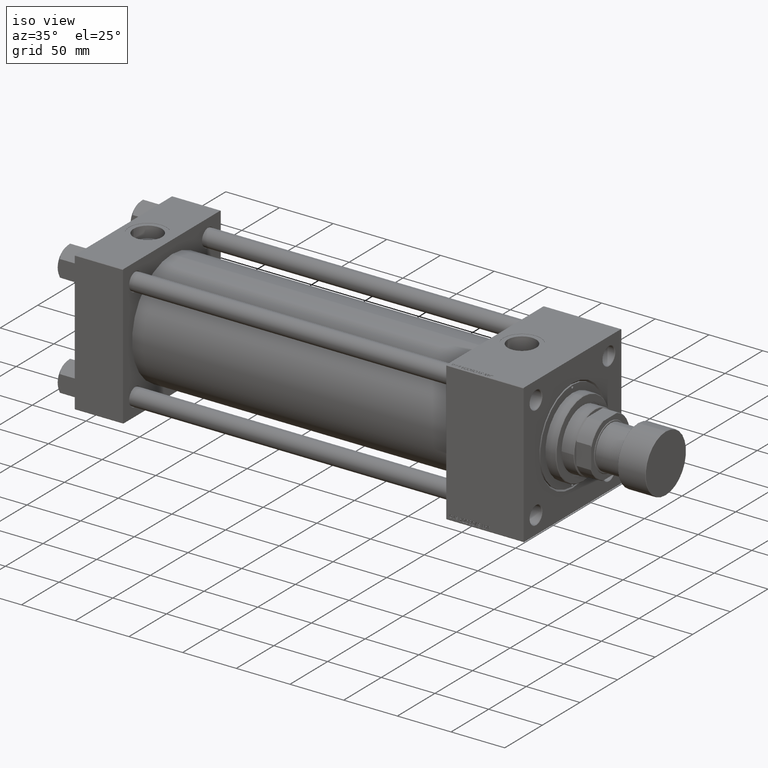
[diagram: clean part render]
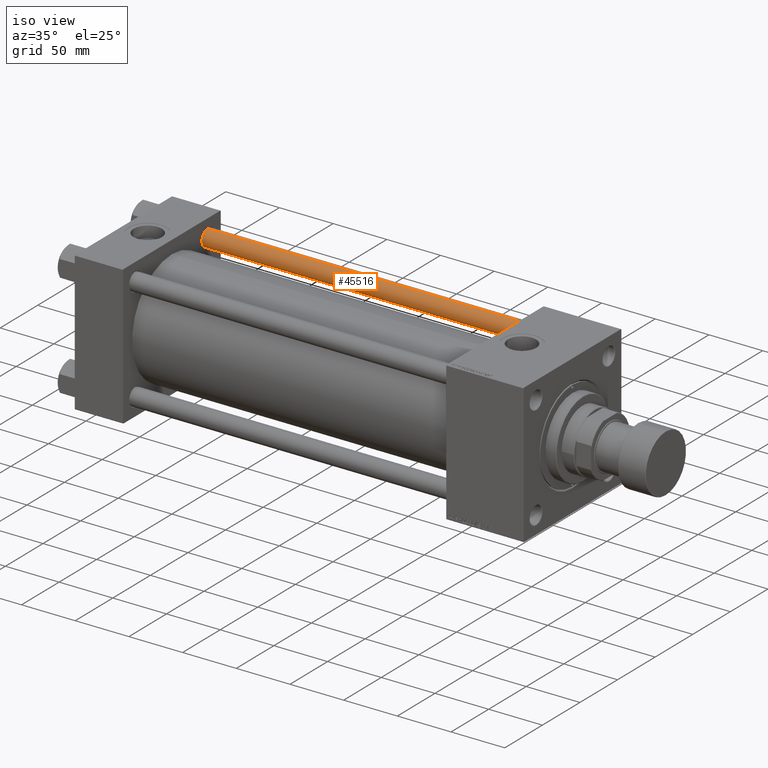
[diagram: same view with one face highlighted and labeled with its STEP entity id]
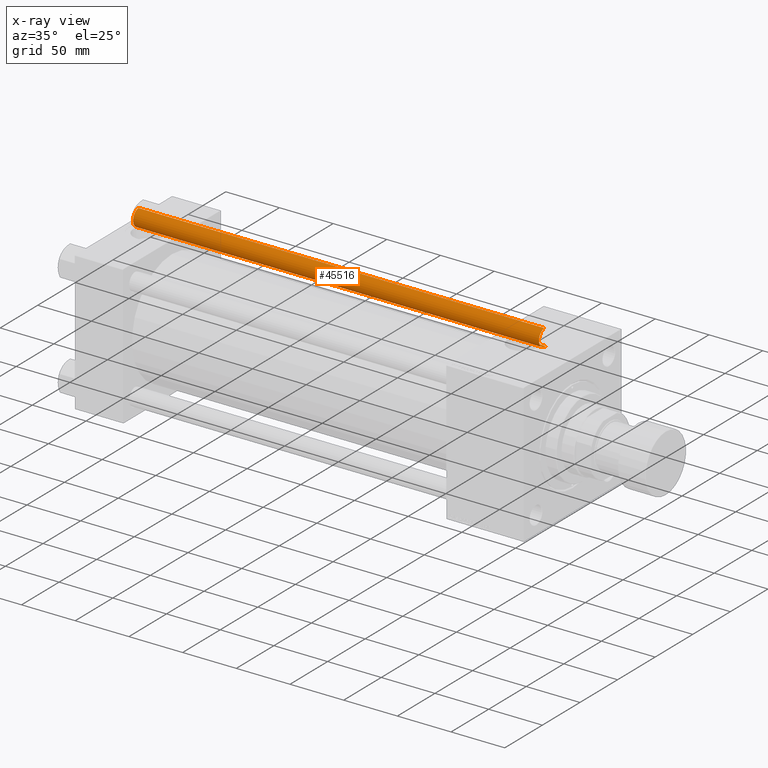
[diagram: x-ray of the same camera — body ghosted, the highlighted face saturated]
A machine part, iso view. The second image highlights one B-rep face of the part: STEP entity #45516.
The next image is the same camera in x-ray: the body ghosted, the highlighted face saturated — about 0% of this face is hidden behind the body in this view.
In plain terms, the highlighted cylindrical surface (edge-blend (fillet) strip) has radius 8 mm, axis along (-1, 0, 0).
Its self-contained STEP definition (entity closure, byte-faithful):
#698 = DIRECTION ( 'NONE',  ( 1.000000000000000000, 0.000000000000000000, 0.000000000000000000 ) ) ;
#2850 = EDGE_CURVE ( 'NONE', #25736, #32382, #8955, .T. ) ;
#3940 = DIRECTION ( 'NONE',  ( -0.000000000000000000, -0.000000000000000000, 1.000000000000000000 ) ) ;
#8955 = LINE ( 'NONE', #41707, #26645 ) ;
#10463 = VERTEX_POINT ( 'NONE', #27594 ) ;
#10537 = EDGE_CURVE ( 'NONE', #45995, #25736, #43193, .T. ) ;
#13434 = CARTESIAN_POINT ( 'NONE',  ( 8.000000000000000000, 9.797174393178825657E-16, 378.4999999999999432 ) ) ;
#16657 = ORIENTED_EDGE ( 'NONE', *, *, #10537, .T. ) ;
#16798 = CARTESIAN_POINT ( 'NONE',  ( -8.000000000000000000, 0.000000000000000000, 378.4999999999999432 ) ) ;
#16821 = CARTESIAN_POINT ( 'NONE',  ( 0.000000000000000000, 0.000000000000000000, 0.4999999999998894218 ) ) ;
#18380 = CYLINDRICAL_SURFACE ( 'NONE', #30956, 8.000000000000000000 ) ;
#20655 = EDGE_CURVE ( 'NONE', #32382, #10463, #43530, .T. ) ;
#22109 = AXIS2_PLACEMENT_3D ( 'NONE', #16821, #3940, #36696 ) ;
#24147 = VECTOR ( 'NONE', #30730, 1000.000000000000000 ) ;
#25736 = VERTEX_POINT ( 'NONE', #16798 ) ;
#25795 = CARTESIAN_POINT ( 'NONE',  ( -8.000000000000000000, 0.000000000000000000, 0.4999999999998894218 ) ) ;
#26645 = VECTOR ( 'NONE', #48970, 1000.000000000000000 ) ;
#26792 = ORIENTED_EDGE ( 'NONE', *, *, #2850, .T. ) ;
#26976 = CARTESIAN_POINT ( 'NONE',  ( 8.000000000000000000, 9.797174393178825657E-16, 379.0000000000000000 ) ) ;
#27594 = CARTESIAN_POINT ( 'NONE',  ( 8.000000000000000000, 9.797174393178825657E-16, 0.4999999999998894218 ) ) ;
#28230 = EDGE_LOOP ( 'NONE', ( #47090, #16657, #26792, #33073 ) ) ;
#29470 = AXIS2_PLACEMENT_3D ( 'NONE', #40737, #41784, #698 ) ;
#30455 = DIRECTION ( 'NONE',  ( -1.000000000000000000, 0.000000000000000000, 0.000000000000000000 ) ) ;
#30714 = CARTESIAN_POINT ( 'NONE',  ( 0.000000000000000000, 0.000000000000000000, 379.0000000000000000 ) ) ;
#30730 = DIRECTION ( 'NONE',  ( -0.000000000000000000, -0.000000000000000000, -1.000000000000000000 ) ) ;
#30956 = AXIS2_PLACEMENT_3D ( 'NONE', #30714, #43327, #30455 ) ;
#31012 = LINE ( 'NONE', #26976, #24147 ) ;
#32382 = VERTEX_POINT ( 'NONE', #25795 ) ;
#32889 = EDGE_CURVE ( 'NONE', #45995, #10463, #31012, .T. ) ;
#33073 = ORIENTED_EDGE ( 'NONE', *, *, #20655, .T. ) ;
#35276 = FACE_OUTER_BOUND ( 'NONE', #28230, .T. ) ;
#36696 = DIRECTION ( 'NONE',  ( 1.000000000000000000, 0.000000000000000000, 0.000000000000000000 ) ) ;
#40737 = CARTESIAN_POINT ( 'NONE',  ( 0.000000000000000000, 0.000000000000000000, 378.4999999999999432 ) ) ;
#41707 = CARTESIAN_POINT ( 'NONE',  ( -8.000000000000000000, 0.000000000000000000, 379.0000000000000000 ) ) ;
#41784 = DIRECTION ( 'NONE',  ( 0.000000000000000000, 0.000000000000000000, -1.000000000000000000 ) ) ;
#43193 = CIRCLE ( 'NONE', #29470, 8.000000000000000000 ) ;
#43327 = DIRECTION ( 'NONE',  ( -0.000000000000000000, -0.000000000000000000, -1.000000000000000000 ) ) ;
#43530 = CIRCLE ( 'NONE', #22109, 8.000000000000000000 ) ;
#45516 = ADVANCED_FACE ( 'NONE', ( #35276 ), #18380, .T. ) ;
#45995 = VERTEX_POINT ( 'NONE', #13434 ) ;
#47090 = ORIENTED_EDGE ( 'NONE', *, *, #32889, .F. ) ;
#48970 = DIRECTION ( 'NONE',  ( -0.000000000000000000, -0.000000000000000000, -1.000000000000000000 ) ) ;